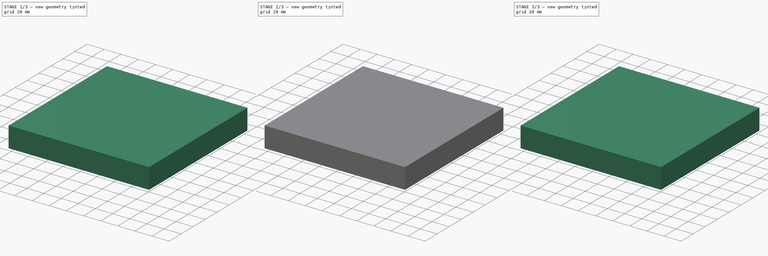
[diagram: build sequence overview — one tinted view per stage of 3, left to right]
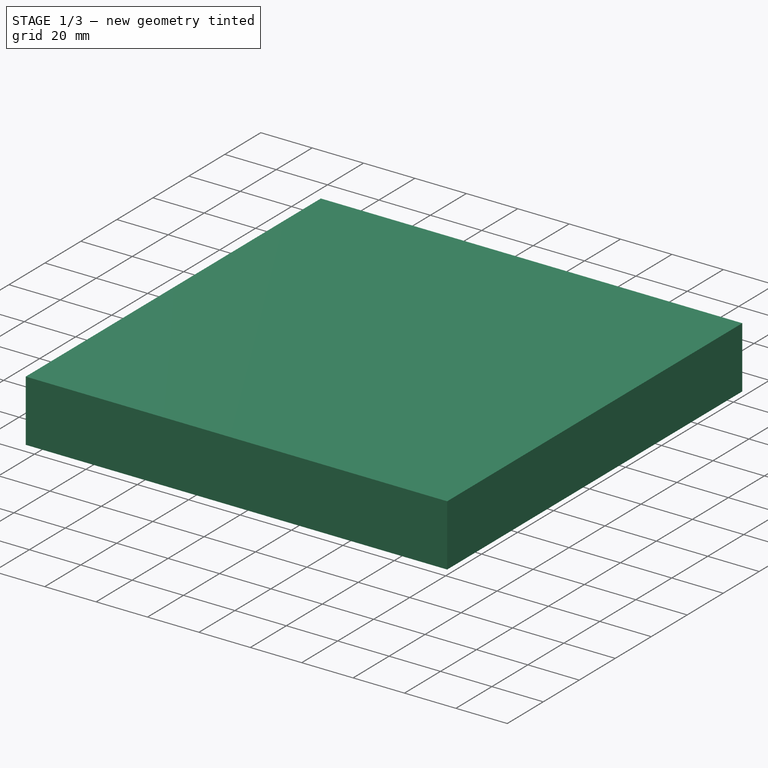
[diagram: stage 1 of 3 — iso view after this stage's code; geometry added in this stage tinted green]
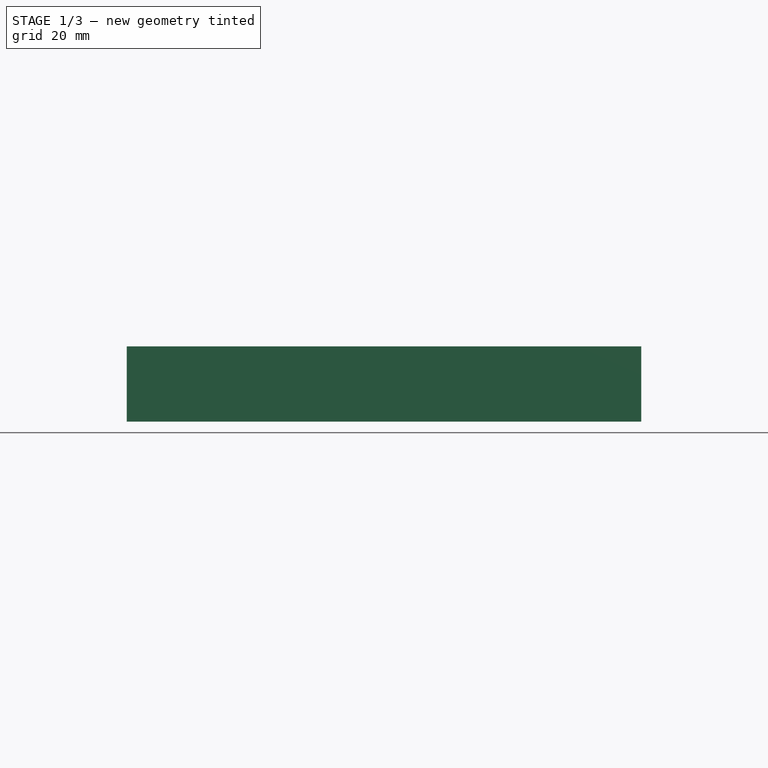
[diagram: stage 1 of 3 — front view after this stage's code; geometry added in this stage tinted green]
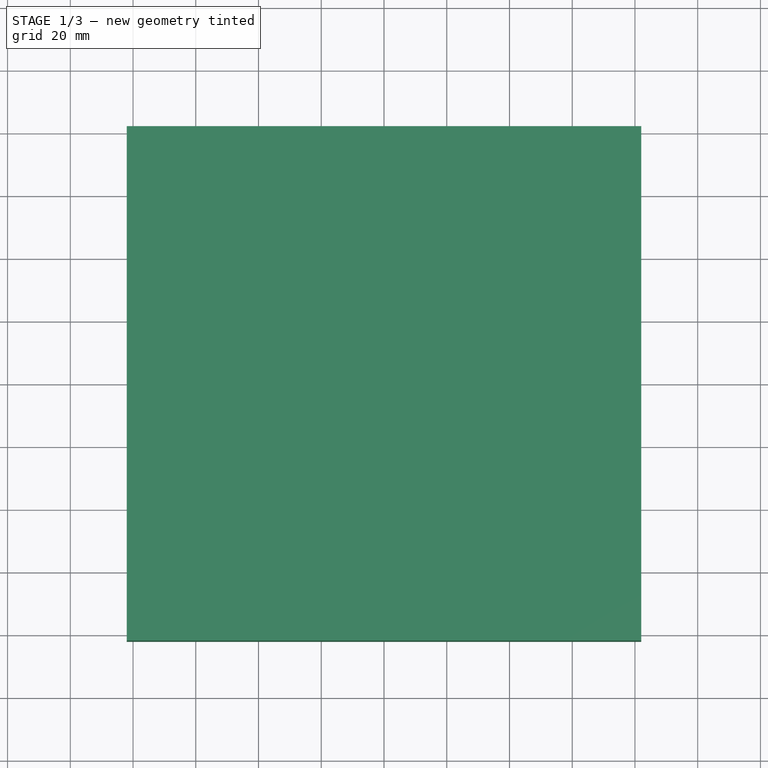
[diagram: stage 1 of 3 — top view after this stage's code; geometry added in this stage tinted green]
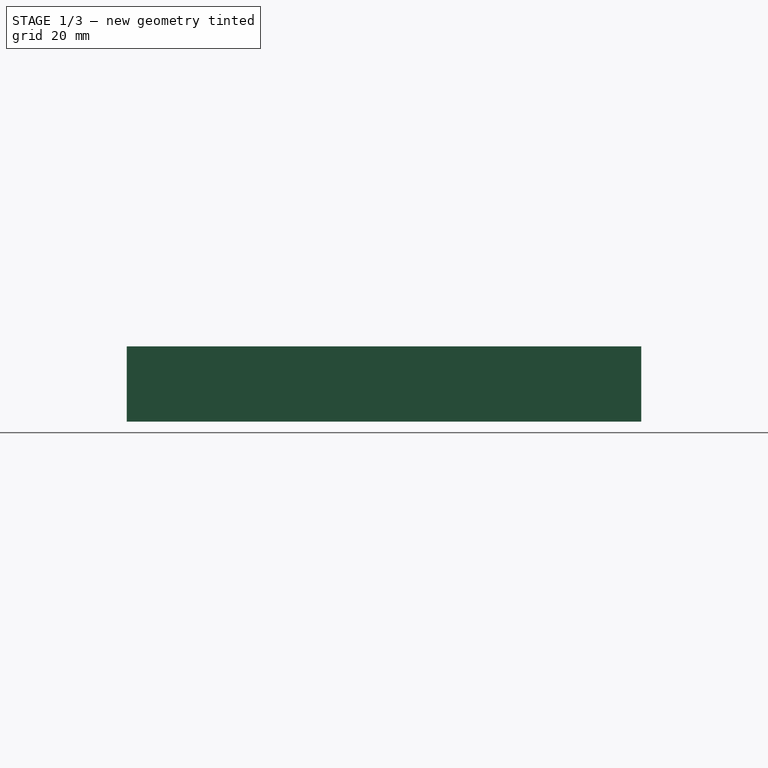
[diagram: stage 1 of 3 — right view after this stage's code; geometry added in this stage tinted green]
FCSTD DOCUMENT  (FreeCAD 0.18R16131 (Git))
Label: Patch Antenna 5
License: All rights reserved
LicenseURL: http://en.wikipedia.org/wiki/All_rights_reserved
objects: Sketcher::SketchObject×5, Part::Extrusion×5
note: 10 computed .brp shape members not serialized (recipe doc carries the construction recipe); baked Part::Feature solids carry a one-line shape summary decoded from their .brp

FEATURE [Part::Extrusion] Extrude003  label="excitation"
  Base = -> Sketch002
  Dir = (0,0,1)
  DirMode = 2
  FaceMakerClass = Part::FaceMakerBullseye
  LengthFwd = 1.6
  LengthRev = 0
  Placement = pos=(0,0,0.035) rot=(0,0,1;0rad)
  Reversed = true
  Solid = true
  Symmetric = false
FEATURE [Sketcher::SketchObject] Sketch004  label="sketch_air"
  sketch-geometry (4):
    g0: LineSegment StartX=-82 StartY=82 StartZ=0 EndX=82 EndY=82 EndZ=0
    g1: LineSegment StartX=82 StartY=82 StartZ=0 EndX=82 EndY=-82 EndZ=0
    g2: LineSegment StartX=82 StartY=-82 StartZ=0 EndX=-82 EndY=-82 EndZ=0
    g3: LineSegment StartX=-82 StartY=-82 StartZ=0 EndX=-82 EndY=82 EndZ=0
  constraints (12):
    c: Coincident(g0,g1)
    c: Coincident(g1,g2)
    c: Coincident(g2,g3)
    c: Coincident(g3,g0)
    c: Horizontal(g0)
    c: Horizontal(g2)
    c: Vertical(g1)
    c: Vertical(g3)
    c: Distance(g0) = 164
    c: Distance(g1) = 164
    c: Distance(g0,g-2) = 82
    c: Distance(g0,g-1) = 82
FEATURE [Part::Extrusion] Extrude004  label="air"
  Base = -> Sketch004
  Dir = (0,0,1)
  DirMode = 2
  FaceMakerClass = Part::FaceMakerBullseye
  LengthFwd = 24
  LengthRev = 0
  Solid = true
  Symmetric = true
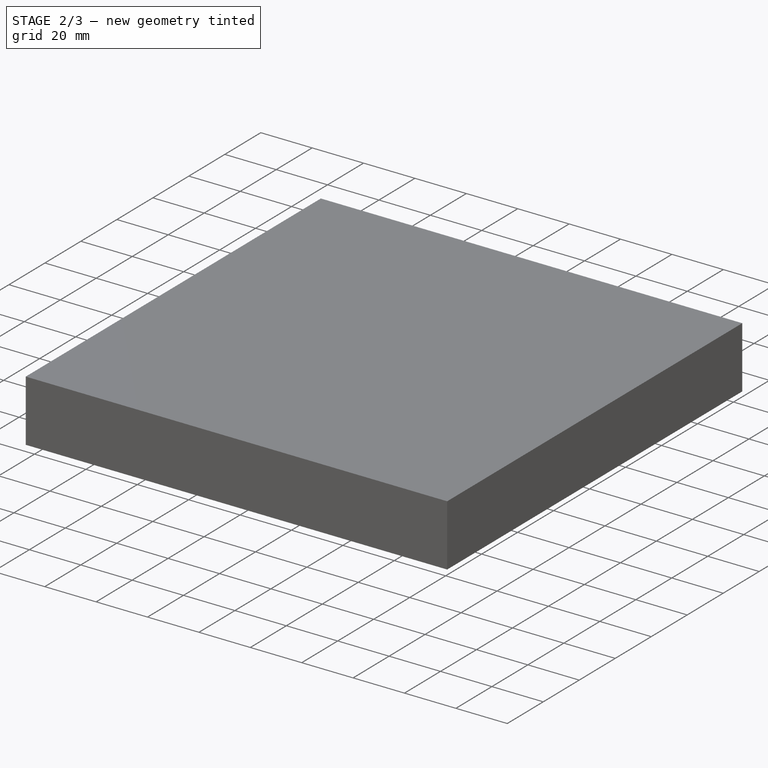
[diagram: stage 2 of 3 — iso view after this stage's code; geometry added in this stage tinted green]
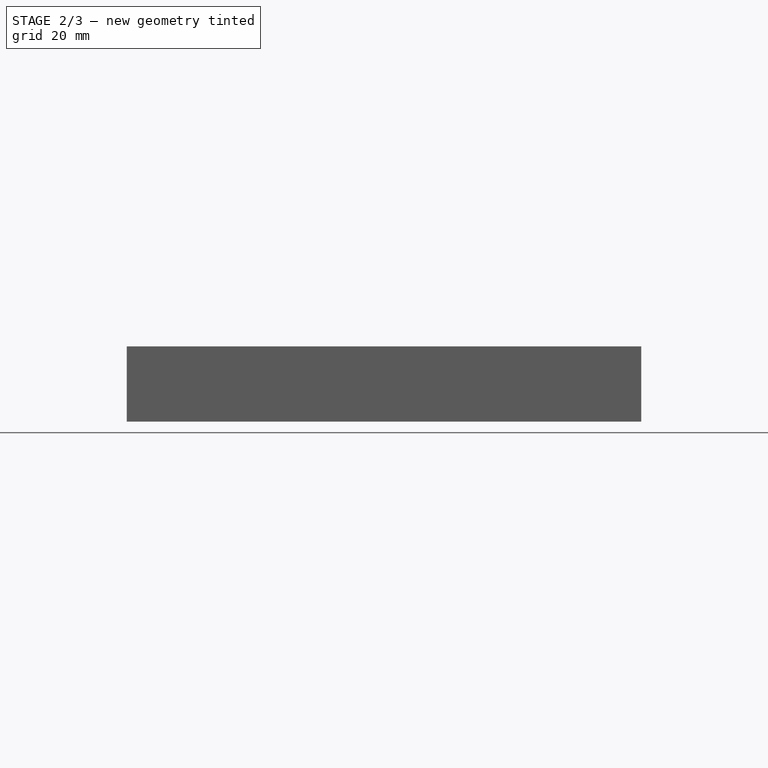
[diagram: stage 2 of 3 — front view after this stage's code; geometry added in this stage tinted green]
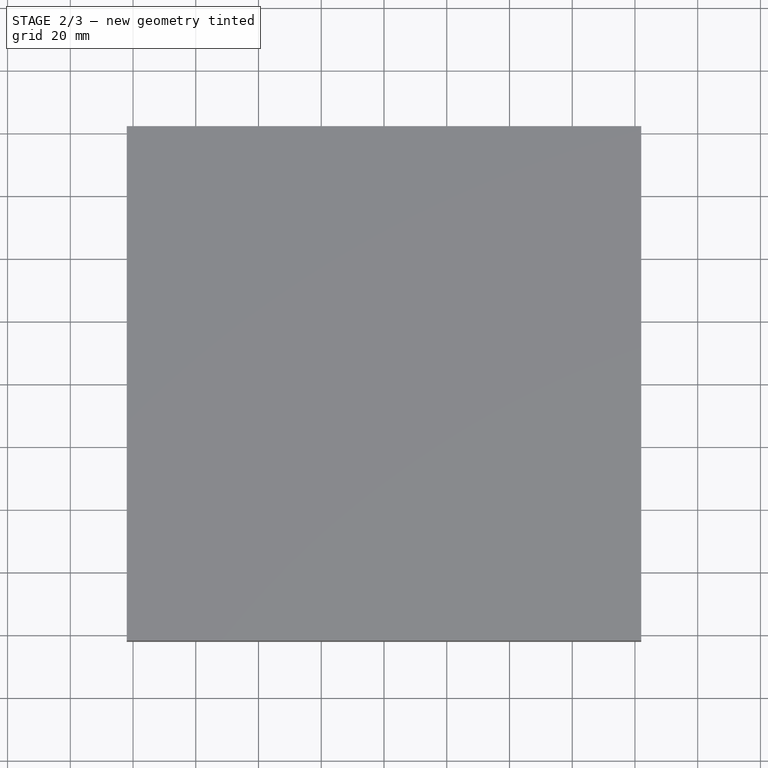
[diagram: stage 2 of 3 — top view after this stage's code; geometry added in this stage tinted green]
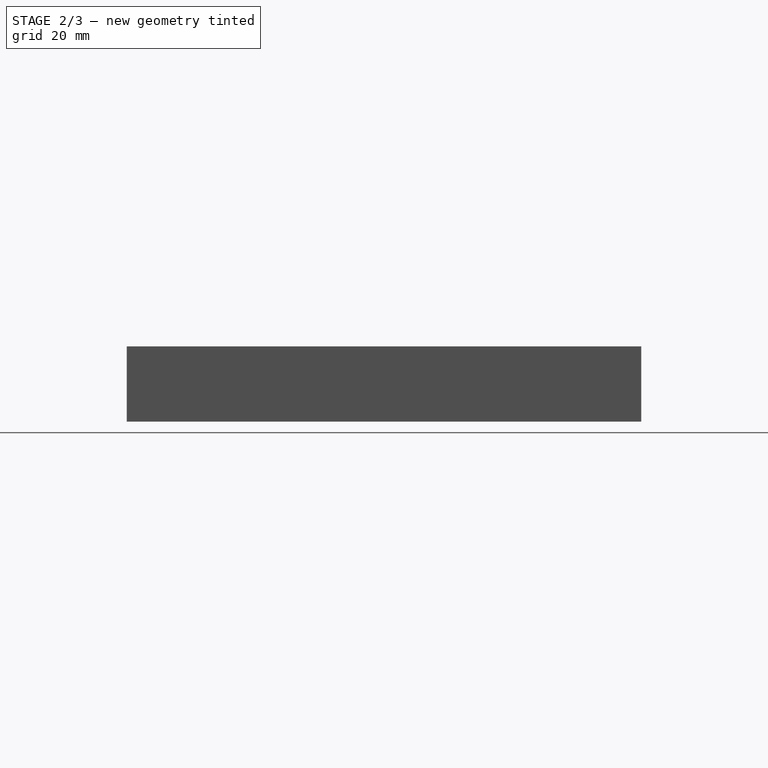
[diagram: stage 2 of 3 — right view after this stage's code; geometry added in this stage tinted green]
FEATURE [Part::Extrusion] Extrude001  label="substrate"
  Base = -> Sketch001
  Dir = (0,0,1)
  DirMode = 2
  FaceMakerClass = Part::FaceMakerBullseye
  LengthFwd = 1.524
  LengthRev = 0
  Reversed = true
  Solid = true
  Symmetric = false
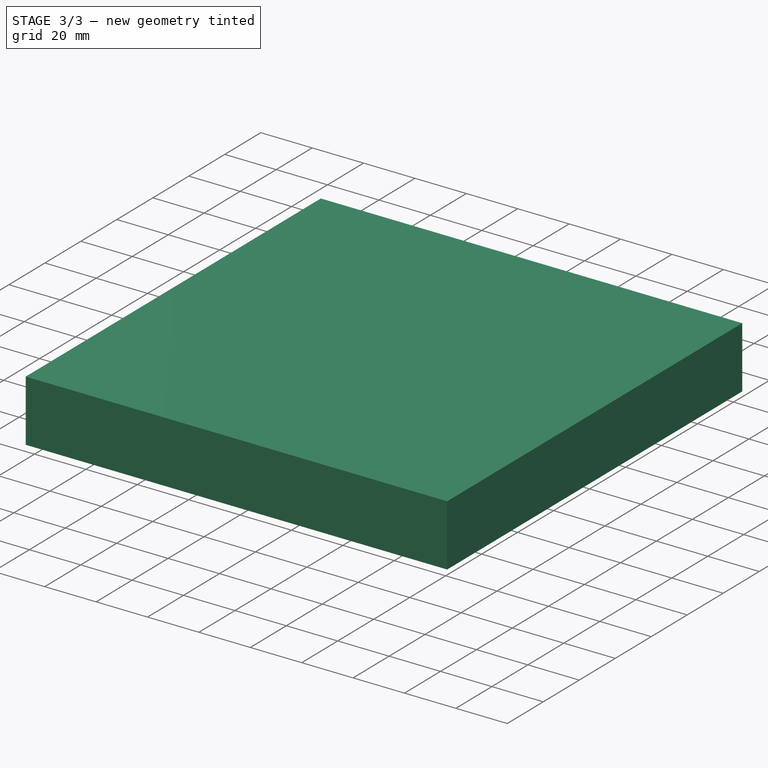
[diagram: stage 3 of 3 — iso view after this stage's code; geometry added in this stage tinted green]
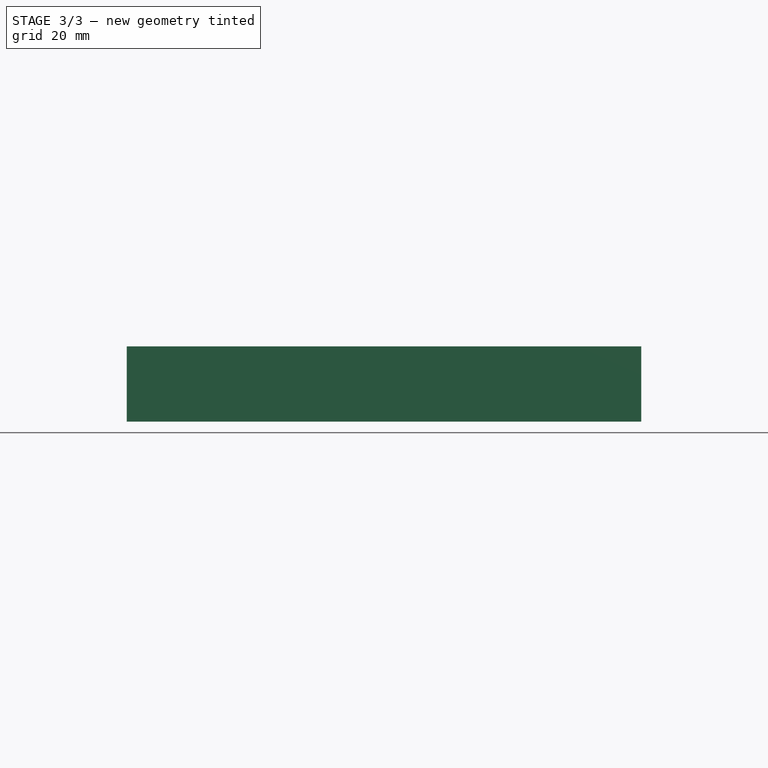
[diagram: stage 3 of 3 — front view after this stage's code; geometry added in this stage tinted green]
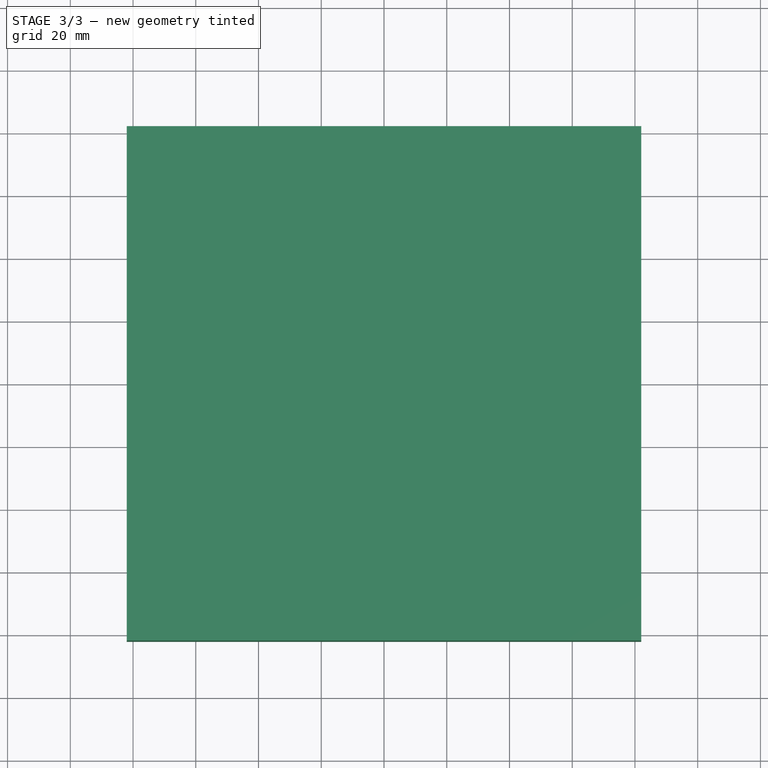
[diagram: stage 3 of 3 — top view after this stage's code; geometry added in this stage tinted green]
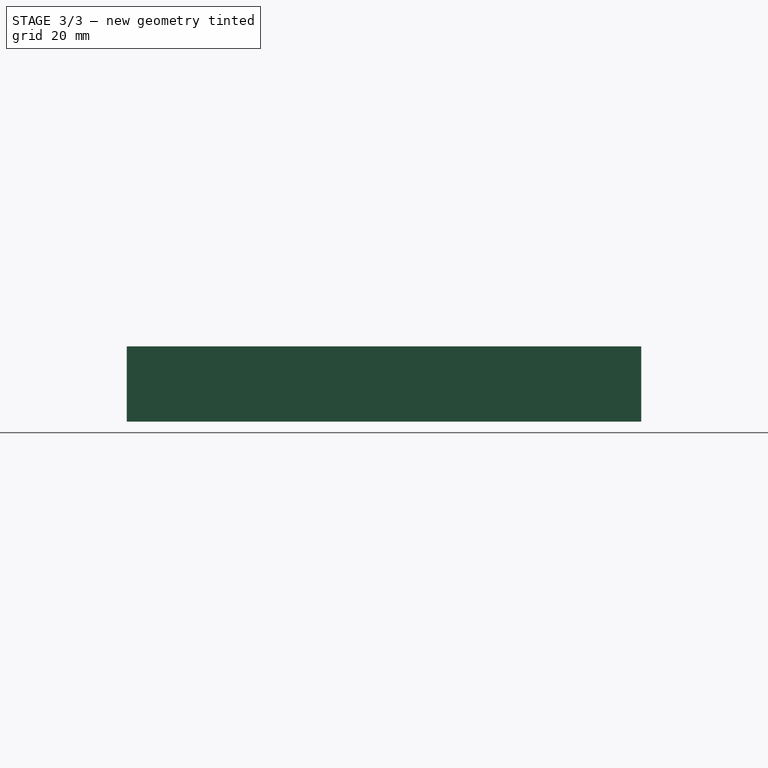
[diagram: stage 3 of 3 — right view after this stage's code; geometry added in this stage tinted green]
FEATURE [Sketcher::SketchObject] Sketch  label="sketch_patch"
  sketch-geometry (4):
    g0: LineSegment StartX=16.43 StartY=20.685 StartZ=0 EndX=-16.43 EndY=20.685 EndZ=0
    g1: LineSegment StartX=-16.43 StartY=20.685 StartZ=0 EndX=-16.43 EndY=-20.685 EndZ=0
    g2: LineSegment StartX=-16.43 StartY=-20.685 StartZ=0 EndX=16.43 EndY=-20.685 EndZ=0
    g3: LineSegment StartX=16.43 StartY=-20.685 StartZ=0 EndX=16.43 EndY=20.685 EndZ=0
  constraints (12):
    c: Coincident(g0,g1)
    c: Coincident(g1,g2)
    c: Coincident(g2,g3)
    c: Coincident(g3,g0)
    c: Horizontal(g0)
    c: Horizontal(g2)
    c: Vertical(g1)
    c: Vertical(g3)
    c: DistanceX(g-2,g0) = 16.43
    c: Distance(g0,g-1) = 20.685
    c: DistanceY(g-1,g1) = -20.685
    c: DistanceX(g-2,g1) = -16.43
FEATURE [Sketcher::SketchObject] Sketch001  label="sketch_substrate"
  MapMode = 2
  Support = -> [Sketch]
  sketch-geometry (4):
    g0: LineSegment StartX=-30 StartY=-30 StartZ=0 EndX=30 EndY=-30 EndZ=0
    g1: LineSegment StartX=30 StartY=-30 StartZ=0 EndX=30 EndY=30 EndZ=0
    g2: LineSegment StartX=30 StartY=30 StartZ=0 EndX=-30 EndY=30 EndZ=0
    g3: LineSegment StartX=-30 StartY=30 StartZ=0 EndX=-30 EndY=-30 EndZ=0
  constraints (12):
    c: Coincident(g0,g1)
    c: Coincident(g1,g2)
    c: Coincident(g2,g3)
    c: Coincident(g3,g0)
    c: Horizontal(g0)
    c: Horizontal(g2)
    c: Vertical(g1)
    c: Vertical(g3)
    c: Distance(g1,g-2) = 30
    c: Distance(g1,g-1) = 30
    c: Distance(g0,g-2) = 30
    c: Distance(g0,g-1) = 30
FEATURE [Sketcher::SketchObject] Sketch002  label="sketch_excitation"
  MapMode = 2
  Support = -> [Sketch001]
  sketch-geometry (4):
    g0: LineSegment StartX=-5.6 StartY=-1 StartZ=0 EndX=-5.8 EndY=-1 EndZ=0
    g1: LineSegment StartX=-5.8 StartY=-1 StartZ=0 EndX=-5.8 EndY=1 EndZ=0
    g2: LineSegment StartX=-5.8 StartY=1 StartZ=0 EndX=-5.6 EndY=1 EndZ=0
    g3: LineSegment StartX=-5.6 StartY=1 StartZ=0 EndX=-5.6 EndY=-1 EndZ=0
  constraints (12):
    c: Coincident(g0,g1)
    c: Coincident(g1,g2)
    c: Coincident(g2,g3)
    c: Coincident(g3,g0)
    c: Horizontal(g0)
    c: Horizontal(g2)
    c: Vertical(g1)
    c: Vertical(g3)
    c: Distance(g0,g1) = 2
    c: Distance(g2) = 0.2
    c: Distance(g2,g-2) = 5.6
    c: Distance(g1,g-1) = 1
FEATURE [Part::Extrusion] Extrude  label="antenna"
  Base = -> Sketch
  Dir = (0,0,1)
  DirMode = 2
  FaceMakerClass = Part::FaceMakerBullseye
  LengthFwd = 0.035
  LengthRev = 0
  Solid = true
  Symmetric = false
FEATURE [Sketcher::SketchObject] Sketch003  label="sketch_gnd"
  MapMode = 5
  Placement = pos=(0,0,-1.524) rot=(1,0,0;3.14159rad)
  Support = -> [Extrude001]
  sketch-geometry (4):
    g0: LineSegment StartX=30 StartY=30 StartZ=0 EndX=-30 EndY=30 EndZ=0
    g1: LineSegment StartX=-30 StartY=30 StartZ=0 EndX=-30 EndY=-30 EndZ=0
    g2: LineSegment StartX=-30 StartY=-30 StartZ=0 EndX=30 EndY=-30 EndZ=0
    g3: LineSegment StartX=30 StartY=-30 StartZ=0 EndX=30 EndY=30 EndZ=0
  constraints (12):
    c: Coincident(g0,g1)
    c: Coincident(g1,g2)
    c: Coincident(g2,g3)
    c: Coincident(g3,g0)
    c: Horizontal(g0)
    c: Horizontal(g2)
    c: Vertical(g1)
    c: Vertical(g3)
    c: Distance(g2) = 60
    c: Distance(g3) = 60
    c: Distance(g0,g-2) = 30
    c: DistanceY(g-1,g0) = 30
FEATURE [Part::Extrusion] Extrude002  label="gnd"
  Base = -> Sketch003
  Dir = (0,0,-1)
  DirMode = 2
  FaceMakerClass = Part::FaceMakerBullseye
  LengthFwd = 0.035
  LengthRev = 0
  Solid = true
  Symmetric = false
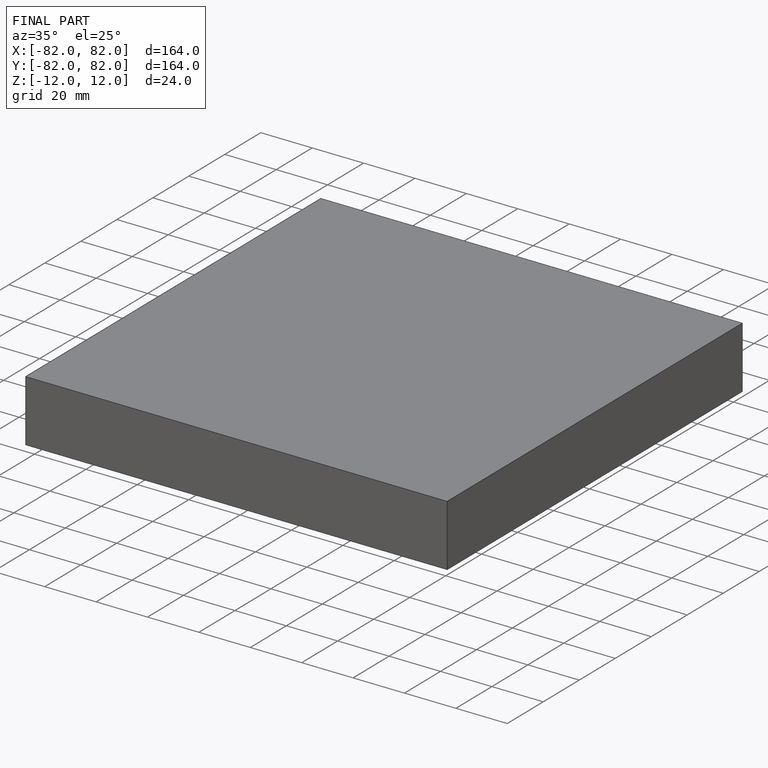
[diagram: finished part — iso view with bounding-box wireframe]
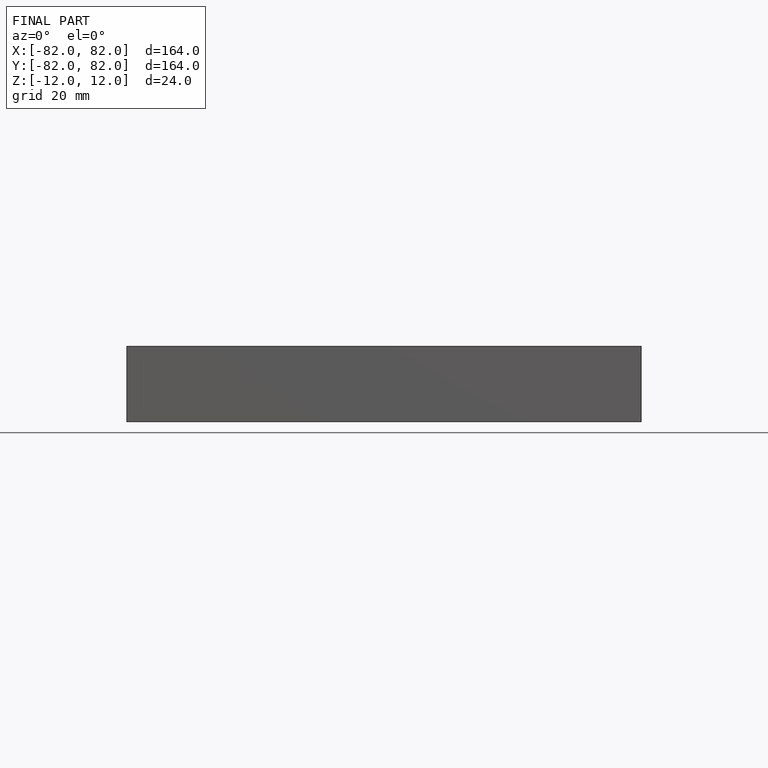
[diagram: finished part — front view with bounding-box wireframe]
